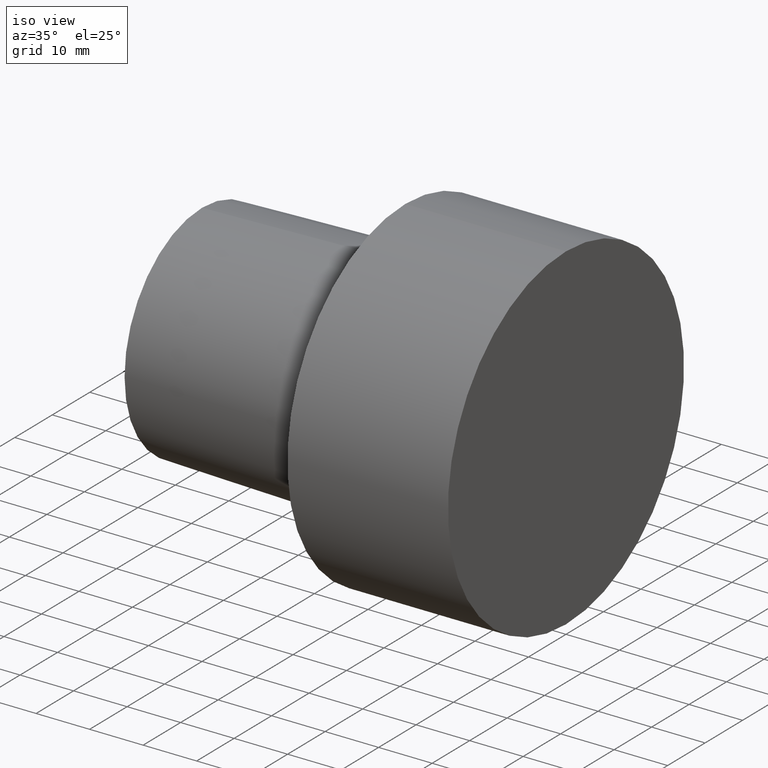
[diagram: clean part render]
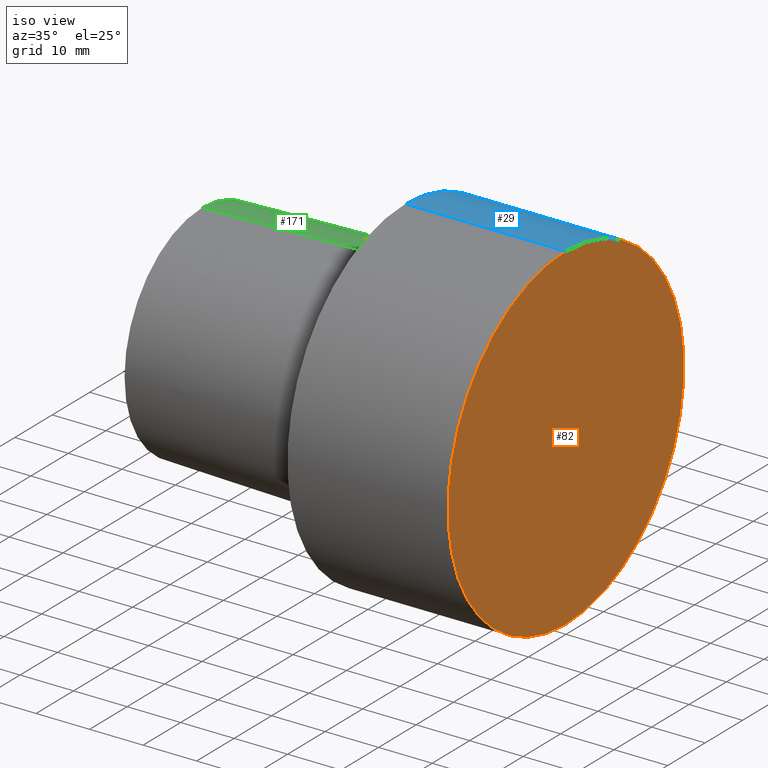
[diagram: same view with three faces highlighted in distinct colors, each labeled with its STEP entity id]
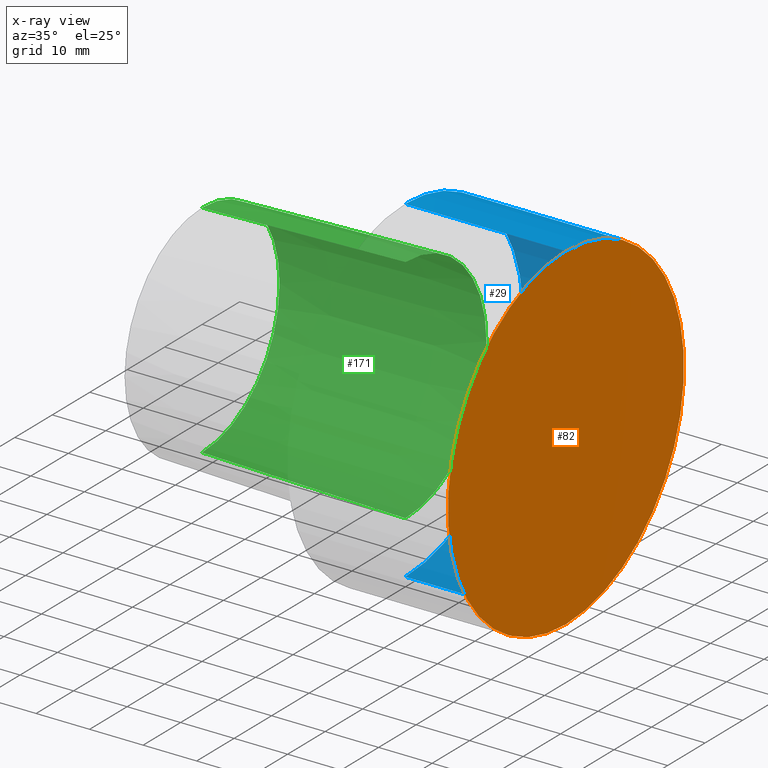
[diagram: x-ray of the same camera — body ghosted, the three highlighted faces saturated]
A machine part, iso view with three faces highlighted in distinct colors.
The next image is the same camera in x-ray (body ghosted, the three faces saturated) — at least one of them is partly hidden behind the body in this view.
Their STEP definitions:

[orange] entity #82 — the highlighted planar face has unit normal (-1, 0, 0).
#1 = VERTEX_POINT ( 'NONE', #129 ) ;
#8 = DIRECTION ( 'NONE',  ( 0.000000000000000000, 0.000000000000000000, 1.000000000000000000 ) ) ;
#16 = CARTESIAN_POINT ( 'NONE',  ( 29.99999996940000102, 0.000000000000000000, 0.000000000000000000 ) ) ;
#17 = DIRECTION ( 'NONE',  ( -1.000000000000000000, 0.000000000000000000, 0.000000000000000000 ) ) ;
#31 = ORIENTED_EDGE ( 'NONE', *, *, #190, .F. ) ;
#40 = AXIS2_PLACEMENT_3D ( 'NONE', #16, #17, #76 ) ;
#45 = FACE_OUTER_BOUND ( 'NONE', #237, .T. ) ;
#49 = PLANE ( 'NONE',  #180 ) ;
#66 = DIRECTION ( 'NONE',  ( -1.000000000000000000, 0.000000000000000000, 0.000000000000000000 ) ) ;
#68 = AXIS2_PLACEMENT_3D ( 'NONE', #166, #66, #146 ) ;
#72 = CARTESIAN_POINT ( 'NONE',  ( 29.99999996940000102, 3.857637413379370248E-15, -31.49999996787000001 ) ) ;
#76 = DIRECTION ( 'NONE',  ( 0.000000000000000000, 0.000000000000000000, 1.000000000000000000 ) ) ;
#82 = ADVANCED_FACE ( 'NONE', ( #45 ), #49, .F. ) ;
#111 = CIRCLE ( 'NONE', #68, 31.49999996787000001 ) ;
#114 = EDGE_CURVE ( 'NONE', #228, #1, #111, .T. ) ;
#129 = CARTESIAN_POINT ( 'NONE',  ( 29.99999996940000102, 0.000000000000000000, 31.49999996787000001 ) ) ;
#130 = DIRECTION ( 'NONE',  ( -1.000000000000000000, 0.000000000000000000, 0.000000000000000000 ) ) ;
#146 = DIRECTION ( 'NONE',  ( 0.000000000000000000, 0.000000000000000000, 1.000000000000000000 ) ) ;
#165 = CIRCLE ( 'NONE', #40, 31.49999996787000001 ) ;
#166 = CARTESIAN_POINT ( 'NONE',  ( 29.99999996940000102, 0.000000000000000000, 0.000000000000000000 ) ) ;
#180 = AXIS2_PLACEMENT_3D ( 'NONE', #188, #130, #8 ) ;
#188 = CARTESIAN_POINT ( 'NONE',  ( 29.99999996940000102, 0.000000000000000000, 0.000000000000000000 ) ) ;
#190 = EDGE_CURVE ( 'NONE', #1, #228, #165, .T. ) ;
#219 = ORIENTED_EDGE ( 'NONE', *, *, #114, .F. ) ;
#228 = VERTEX_POINT ( 'NONE', #72 ) ;
#237 = EDGE_LOOP ( 'NONE', ( #31, #219 ) ) ;

[blue] entity #29 — the highlighted cylindrical surface (partial cylindrical patch) has radius 31.5 mm, axis along (-1, 0, 0).
#1 = VERTEX_POINT ( 'NONE', #129 ) ;
#3 = ORIENTED_EDGE ( 'NONE', *, *, #248, .T. ) ;
#9 = AXIS2_PLACEMENT_3D ( 'NONE', #44, #26, #168 ) ;
#13 = LINE ( 'NONE', #156, #84 ) ;
#16 = CARTESIAN_POINT ( 'NONE',  ( 29.99999996940000102, 0.000000000000000000, 0.000000000000000000 ) ) ;
#17 = DIRECTION ( 'NONE',  ( -1.000000000000000000, 0.000000000000000000, 0.000000000000000000 ) ) ;
#19 = VERTEX_POINT ( 'NONE', #64 ) ;
#26 = DIRECTION ( 'NONE',  ( -1.000000000000000000, 0.000000000000000000, 0.000000000000000000 ) ) ;
#29 = ADVANCED_FACE ( 'NONE', ( #69 ), #207, .T. ) ;
#40 = AXIS2_PLACEMENT_3D ( 'NONE', #16, #17, #76 ) ;
#44 = CARTESIAN_POINT ( 'NONE',  ( 0.000000000000000000, 0.000000000000000000, 0.000000000000000000 ) ) ;
#64 = CARTESIAN_POINT ( 'NONE',  ( 0.000000000000000000, 0.000000000000000000, 31.49999996787000001 ) ) ;
#67 = LINE ( 'NONE', #147, #107 ) ;
#69 = FACE_OUTER_BOUND ( 'NONE', #226, .T. ) ;
#70 = EDGE_CURVE ( 'NONE', #19, #205, #204, .T. ) ;
#72 = CARTESIAN_POINT ( 'NONE',  ( 29.99999996940000102, 3.857637413379370248E-15, -31.49999996787000001 ) ) ;
#76 = DIRECTION ( 'NONE',  ( 0.000000000000000000, 0.000000000000000000, 1.000000000000000000 ) ) ;
#84 = VECTOR ( 'NONE', #252, 1000.000000000000000 ) ;
#88 = DIRECTION ( 'NONE',  ( -1.000000000000000000, 0.000000000000000000, 0.000000000000000000 ) ) ;
#107 = VECTOR ( 'NONE', #196, 1000.000000000000000 ) ;
#129 = CARTESIAN_POINT ( 'NONE',  ( 29.99999996940000102, 0.000000000000000000, 31.49999996787000001 ) ) ;
#134 = EDGE_CURVE ( 'NONE', #1, #19, #67, .T. ) ;
#147 = CARTESIAN_POINT ( 'NONE',  ( -37.99999996124000035, 0.000000000000000000, 31.49999996787000001 ) ) ;
#156 = CARTESIAN_POINT ( 'NONE',  ( -37.99999996124000035, 3.857637413379370248E-15, -31.49999996787000001 ) ) ;
#164 = DIRECTION ( 'NONE',  ( 0.000000000000000000, 0.000000000000000000, 1.000000000000000000 ) ) ;
#165 = CIRCLE ( 'NONE', #40, 31.49999996787000001 ) ;
#168 = DIRECTION ( 'NONE',  ( 0.000000000000000000, 0.000000000000000000, 1.000000000000000000 ) ) ;
#185 = AXIS2_PLACEMENT_3D ( 'NONE', #225, #88, #164 ) ;
#190 = EDGE_CURVE ( 'NONE', #1, #228, #165, .T. ) ;
#192 = ORIENTED_EDGE ( 'NONE', *, *, #134, .F. ) ;
#196 = DIRECTION ( 'NONE',  ( -1.000000000000000000, 0.000000000000000000, 0.000000000000000000 ) ) ;
#200 = ORIENTED_EDGE ( 'NONE', *, *, #190, .T. ) ;
#204 = CIRCLE ( 'NONE', #9, 31.49999996787000001 ) ;
#205 = VERTEX_POINT ( 'NONE', #251 ) ;
#207 = CYLINDRICAL_SURFACE ( 'NONE', #185, 31.49999996787000001 ) ;
#225 = CARTESIAN_POINT ( 'NONE',  ( -37.99999996124000035, 0.000000000000000000, 0.000000000000000000 ) ) ;
#226 = EDGE_LOOP ( 'NONE', ( #200, #3, #229, #192 ) ) ;
#228 = VERTEX_POINT ( 'NONE', #72 ) ;
#229 = ORIENTED_EDGE ( 'NONE', *, *, #70, .F. ) ;
#248 = EDGE_CURVE ( 'NONE', #228, #205, #13, .T. ) ;
#251 = CARTESIAN_POINT ( 'NONE',  ( 0.000000000000000000, 3.857637413379370248E-15, -31.49999996787000001 ) ) ;
#252 = DIRECTION ( 'NONE',  ( -1.000000000000000000, 0.000000000000000000, 0.000000000000000000 ) ) ;

[green] entity #171 — the highlighted conical surface has half-angle 1.432 deg.
#6 = ORIENTED_EDGE ( 'NONE', *, *, #194, .F. ) ;
#11 = DIRECTION ( 'NONE',  ( 1.000000000000000000, 0.000000000000000000, 0.000000000000000000 ) ) ;
#12 = EDGE_CURVE ( 'NONE', #30, #21, #124, .T. ) ;
#21 = VERTEX_POINT ( 'NONE', #206 ) ;
#23 = AXIS2_PLACEMENT_3D ( 'NONE', #217, #99, #34 ) ;
#30 = VERTEX_POINT ( 'NONE', #245 ) ;
#32 = DIRECTION ( 'NONE',  ( -1.000000000000000000, 0.000000000000000000, 0.000000000000000000 ) ) ;
#34 = DIRECTION ( 'NONE',  ( 0.000000000000000000, 0.000000000000000000, 1.000000000000000000 ) ) ;
#37 = CARTESIAN_POINT ( 'NONE',  ( 0.000000000000000000, 0.000000000000000000, -21.63061196907898065 ) ) ;
#50 = ORIENTED_EDGE ( 'NONE', *, *, #202, .F. ) ;
#51 = AXIS2_PLACEMENT_3D ( 'NONE', #249, #32, #127 ) ;
#52 = DIRECTION ( 'NONE',  ( 0.9996875915253454759, 0.000000000000000000, -0.02499438637482059161 ) ) ;
#54 = DIRECTION ( 'NONE',  ( 0.9996875915253454759, 3.060929527057623083E-18, 0.02499438637482059161 ) ) ;
#56 = CARTESIAN_POINT ( 'NONE',  ( 0.000000000000000000, 0.000000000000000000, 0.000000000000000000 ) ) ;
#60 = ORIENTED_EDGE ( 'NONE', *, *, #12, .T. ) ;
#75 = LINE ( 'NONE', #37, #227 ) ;
#87 = EDGE_LOOP ( 'NONE', ( #6, #167, #60, #50 ) ) ;
#95 = LINE ( 'NONE', #120, #169 ) ;
#97 = DIRECTION ( 'NONE',  ( 0.000000000000000000, 0.000000000000000000, -1.000000000000000000 ) ) ;
#99 = DIRECTION ( 'NONE',  ( -1.000000000000000000, 0.000000000000000000, 0.000000000000000000 ) ) ;
#120 = CARTESIAN_POINT ( 'NONE',  ( 0.000000000000000000, 2.648985971153096932E-15, 21.63061196907898065 ) ) ;
#124 = CIRCLE ( 'NONE', #51, 21.63061196907898065 ) ;
#127 = DIRECTION ( 'NONE',  ( 0.000000000000000000, 0.000000000000000000, 1.000000000000000000 ) ) ;
#138 = VERTEX_POINT ( 'NONE', #198 ) ;
#150 = FACE_OUTER_BOUND ( 'NONE', #87, .T. ) ;
#154 = EDGE_CURVE ( 'NONE', #138, #30, #95, .T. ) ;
#161 = CONICAL_SURFACE ( 'NONE', #197, 21.63061196907898065, 0.02499698951949481940 ) ;
#167 = ORIENTED_EDGE ( 'NONE', *, *, #154, .T. ) ;
#169 = VECTOR ( 'NONE', #54, 1000.000000000000114 ) ;
#170 = VERTEX_POINT ( 'NONE', #234 ) ;
#171 = ADVANCED_FACE ( 'NONE', ( #150 ), #161, .T. ) ;
#194 = EDGE_CURVE ( 'NONE', #138, #170, #250, .T. ) ;
#197 = AXIS2_PLACEMENT_3D ( 'NONE', #56, #11, #97 ) ;
#198 = CARTESIAN_POINT ( 'NONE',  ( -37.99999996124000035, 2.590810135574270981E-15, 20.68052847366897140 ) ) ;
#202 = EDGE_CURVE ( 'NONE', #170, #21, #75, .T. ) ;
#206 = CARTESIAN_POINT ( 'NONE',  ( 0.000000000000000000, 0.000000000000000000, -21.63061196907898065 ) ) ;
#217 = CARTESIAN_POINT ( 'NONE',  ( -37.99999996124000035, 0.000000000000000000, 0.000000000000000000 ) ) ;
#227 = VECTOR ( 'NONE', #52, 1000.000000000000114 ) ;
#234 = CARTESIAN_POINT ( 'NONE',  ( -37.99999996124000035, 0.000000000000000000, -20.68052847366897140 ) ) ;
#245 = CARTESIAN_POINT ( 'NONE',  ( 0.000000000000000000, 2.648985971153096932E-15, 21.63061196907898065 ) ) ;
#249 = CARTESIAN_POINT ( 'NONE',  ( 0.000000000000000000, 0.000000000000000000, 0.000000000000000000 ) ) ;
#250 = CIRCLE ( 'NONE', #23, 20.68052847366897140 ) ;